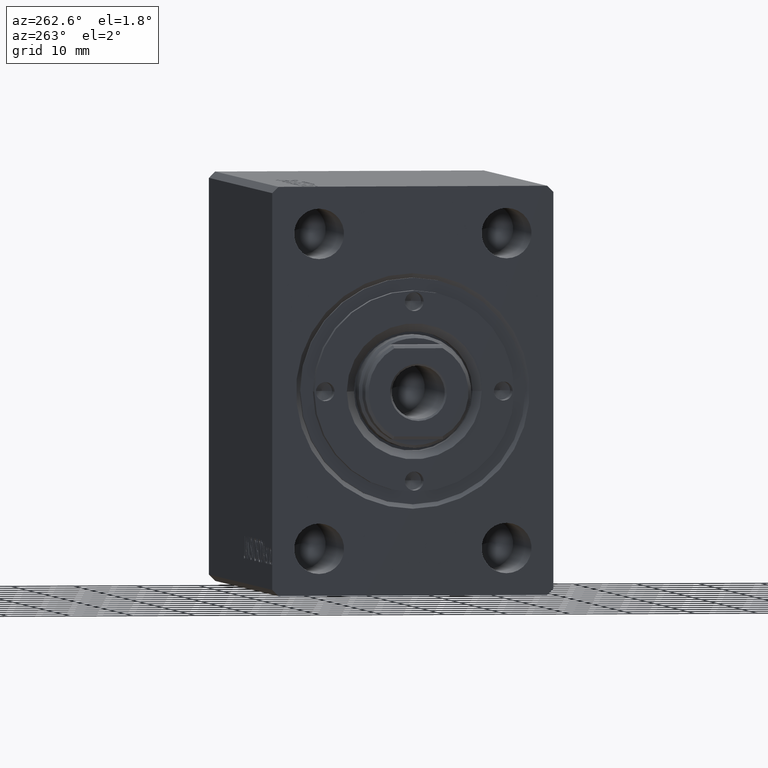
[diagram: clean part render]
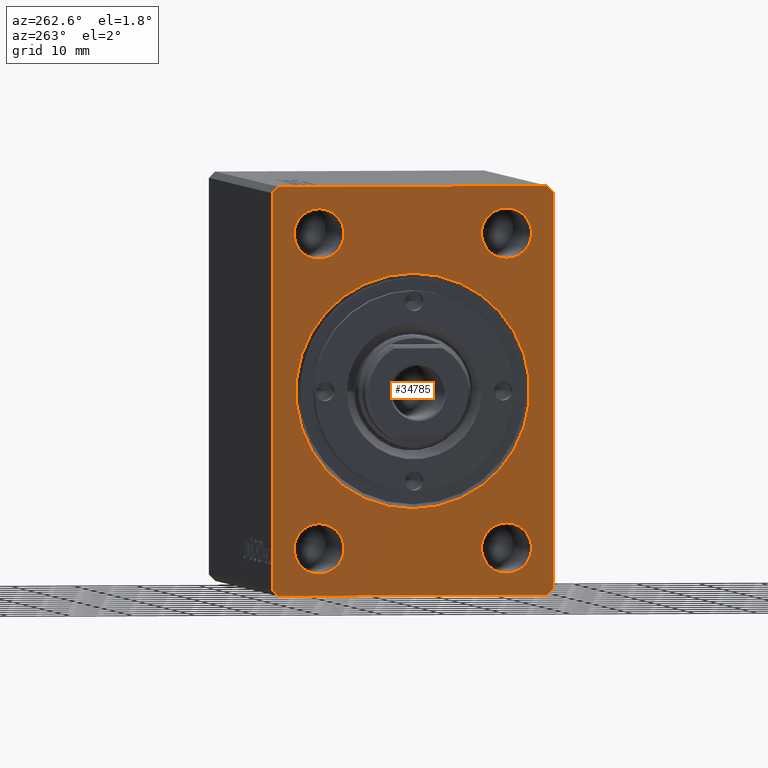
[diagram: same view with one face highlighted and labeled with its STEP entity id]
A machine part, auxiliary view. The second image highlights one B-rep face of the part: STEP entity #34785.
In plain terms, the highlighted planar face has unit normal (1, 0, 0).
Its self-contained STEP definition (entity closure, byte-faithful):
#92 = LINE ( 'NONE', #13500, #36070 ) ;
#530 = DIRECTION ( 'NONE',  ( 0.000000000000000000, -0.7071067811865474617, -0.7071067811865474617 ) ) ;
#1207 = DIRECTION ( 'NONE',  ( 0.000000000000000000, 0.000000000000000000, -1.000000000000000000 ) ) ;
#1606 = CARTESIAN_POINT ( 'NONE',  ( 0.000000000000000000, -21.50000000000001776, -32.50000000000000711 ) ) ;
#1867 = EDGE_CURVE ( 'NONE', #9454, #42395, #24475, .T. ) ;
#2547 = FACE_OUTER_BOUND ( 'NONE', #25325, .T. ) ;
#2665 = CARTESIAN_POINT ( 'NONE',  ( 0.000000000000000000, 21.49999999999999645, -32.50000000000000000 ) ) ;
#2790 = EDGE_CURVE ( 'NONE', #4532, #42989, #12923, .T. ) ;
#2865 = EDGE_CURVE ( 'NONE', #42395, #4532, #20491, .T. ) ;
#2933 = EDGE_CURVE ( 'NONE', #8682, #33231, #30970, .T. ) ;
#3094 = EDGE_CURVE ( 'NONE', #23217, #9454, #25589, .T. ) ;
#3540 = DIRECTION ( 'NONE',  ( 0.000000000000000000, 0.000000000000000000, 1.000000000000000000 ) ) ;
#3721 = VECTOR ( 'NONE', #4171, 1000.000000000000114 ) ;
#3870 = CARTESIAN_POINT ( 'NONE',  ( 0.000000000000000000, 22.49999999999999645, -31.50000000000000000 ) ) ;
#4171 = DIRECTION ( 'NONE',  ( 0.000000000000000000, 0.7071067811865451302, -0.7071067811865500152 ) ) ;
#4183 = CARTESIAN_POINT ( 'NONE',  ( 0.000000000000000000, -22.50000000000001421, -31.50000000000000711 ) ) ;
#4350 = VERTEX_POINT ( 'NONE', #22198 ) ;
#4532 = VERTEX_POINT ( 'NONE', #15456 ) ;
#4676 = CARTESIAN_POINT ( 'NONE',  ( 3.061616997868395467E-16, -14.99999999999999645, 24.99999999999999645 ) ) ;
#4841 = CIRCLE ( 'NONE', #24077, 4.000000000000000000 ) ;
#5374 = CIRCLE ( 'NONE', #30318, 4.000000000000000000 ) ;
#5547 = CARTESIAN_POINT ( 'NONE',  ( 3.061616997868395467E-16, 15.00000000000000355, -24.99999999999999289 ) ) ;
#5668 = CARTESIAN_POINT ( 'NONE',  ( 0.000000000000000000, 0.000000000000000000, 0.000000000000000000 ) ) ;
#5811 = EDGE_CURVE ( 'NONE', #29386, #25935, #28759, .T. ) ;
#6330 = DIRECTION ( 'NONE',  ( 1.000000000000000000, 0.000000000000000000, 0.000000000000000000 ) ) ;
#6672 = AXIS2_PLACEMENT_3D ( 'NONE', #40798, #12929, #3540 ) ;
#6933 = ORIENTED_EDGE ( 'NONE', *, *, #14980, .F. ) ;
#7664 = EDGE_LOOP ( 'NONE', ( #31393, #43999 ) ) ;
#8085 = VERTEX_POINT ( 'NONE', #43728 ) ;
#8228 = CIRCLE ( 'NONE', #31043, 4.000000000000000000 ) ;
#8612 = LINE ( 'NONE', #22229, #23939 ) ;
#8682 = VERTEX_POINT ( 'NONE', #14771 ) ;
#9003 = FACE_BOUND ( 'NONE', #24859, .T. ) ;
#9445 = DIRECTION ( 'NONE',  ( 0.000000000000000000, 0.000000000000000000, -1.000000000000000000 ) ) ;
#9454 = VERTEX_POINT ( 'NONE', #4183 ) ;
#9532 = VECTOR ( 'NONE', #31312, 1000.000000000000000 ) ;
#9688 = EDGE_CURVE ( 'NONE', #22157, #12817, #39548, .T. ) ;
#10418 = CARTESIAN_POINT ( 'NONE',  ( 0.000000000000000000, -22.50000000000001421, -31.50000000000000711 ) ) ;
#10482 = CARTESIAN_POINT ( 'NONE',  ( 0.000000000000000000, 22.49999999999999645, 31.50000000000000000 ) ) ;
#10580 = AXIS2_PLACEMENT_3D ( 'NONE', #42449, #43117, #32623 ) ;
#11120 = EDGE_CURVE ( 'NONE', #4350, #35030, #5374, .T. ) ;
#11121 = VERTEX_POINT ( 'NONE', #10482 ) ;
#11146 = AXIS2_PLACEMENT_3D ( 'NONE', #11685, #31975, #1207 ) ;
#11685 = CARTESIAN_POINT ( 'NONE',  ( 0.000000000000000000, 0.000000000000000000, 0.000000000000000000 ) ) ;
#11757 = AXIS2_PLACEMENT_3D ( 'NONE', #38412, #40727, #44064 ) ;
#11988 = DIRECTION ( 'NONE',  ( -1.000000000000000000, -0.000000000000000000, -0.000000000000000000 ) ) ;
#12229 = EDGE_CURVE ( 'NONE', #35030, #4350, #8228, .T. ) ;
#12394 = AXIS2_PLACEMENT_3D ( 'NONE', #15841, #13376, #39703 ) ;
#12817 = VERTEX_POINT ( 'NONE', #35869 ) ;
#12923 = LINE ( 'NONE', #2665, #19426 ) ;
#12929 = DIRECTION ( 'NONE',  ( -1.000000000000000000, -0.000000000000000000, -0.000000000000000000 ) ) ;
#13207 = ORIENTED_EDGE ( 'NONE', *, *, #12229, .F. ) ;
#13238 = EDGE_CURVE ( 'NONE', #33231, #23217, #92, .T. ) ;
#13250 = FACE_BOUND ( 'NONE', #13331, .T. ) ;
#13279 = EDGE_CURVE ( 'NONE', #25935, #29386, #21841, .T. ) ;
#13331 = EDGE_LOOP ( 'NONE', ( #17563, #21407 ) ) ;
#13376 = DIRECTION ( 'NONE',  ( 1.000000000000000000, 0.000000000000000000, 0.000000000000000000 ) ) ;
#13466 = FACE_BOUND ( 'NONE', #40694, .T. ) ;
#13500 = CARTESIAN_POINT ( 'NONE',  ( 0.000000000000000000, -21.50000000000001421, 32.50000000000000000 ) ) ;
#13704 = ORIENTED_EDGE ( 'NONE', *, *, #11120, .F. ) ;
#14090 = CARTESIAN_POINT ( 'NONE',  ( 3.061616997868395467E-16, 15.00000000000000355, 25.00000000000000000 ) ) ;
#14771 = CARTESIAN_POINT ( 'NONE',  ( 0.000000000000000000, 21.49999999999999645, 32.50000000000000000 ) ) ;
#14857 = CIRCLE ( 'NONE', #10580, 4.000000000000000000 ) ;
#14980 = EDGE_CURVE ( 'NONE', #32399, #8085, #43874, .T. ) ;
#15013 = ORIENTED_EDGE ( 'NONE', *, *, #39903, .F. ) ;
#15456 = CARTESIAN_POINT ( 'NONE',  ( 0.000000000000000000, 21.49999999999999645, -32.50000000000000000 ) ) ;
#15550 = DIRECTION ( 'NONE',  ( 0.000000000000000000, 0.000000000000000000, 1.000000000000000000 ) ) ;
#15841 = CARTESIAN_POINT ( 'NONE',  ( 0.000000000000000000, 0.000000000000000000, 0.000000000000000000 ) ) ;
#16122 = EDGE_CURVE ( 'NONE', #11121, #8682, #8612, .T. ) ;
#16489 = CARTESIAN_POINT ( 'NONE',  ( 0.000000000000000000, -21.50000000000001776, -32.50000000000000711 ) ) ;
#16593 = PLANE ( 'NONE',  #33588 ) ;
#17563 = ORIENTED_EDGE ( 'NONE', *, *, #5811, .T. ) ;
#18358 = LINE ( 'NONE', #39093, #9532 ) ;
#18555 = CIRCLE ( 'NONE', #28544, 4.000000000000000000 ) ;
#19338 = DIRECTION ( 'NONE',  ( 0.000000000000000000, 5.507058653894625853E-17, -1.000000000000000000 ) ) ;
#19426 = VECTOR ( 'NONE', #39469, 1000.000000000000114 ) ;
#19552 = CARTESIAN_POINT ( 'NONE',  ( 3.061616997868395467E-16, 15.00000000000000355, 21.00000000000000000 ) ) ;
#19797 = EDGE_CURVE ( 'NONE', #26774, #38766, #14857, .T. ) ;
#20156 = VECTOR ( 'NONE', #30539, 1000.000000000000000 ) ;
#20491 = LINE ( 'NONE', #16489, #37221 ) ;
#20746 = DIRECTION ( 'NONE',  ( -1.000000000000000000, -0.000000000000000000, -0.000000000000000000 ) ) ;
#20886 = ORIENTED_EDGE ( 'NONE', *, *, #25846, .F. ) ;
#21190 = DIRECTION ( 'NONE',  ( 0.000000000000000000, 0.000000000000000000, 1.000000000000000000 ) ) ;
#21220 = DIRECTION ( 'NONE',  ( -1.000000000000000000, -0.000000000000000000, -0.000000000000000000 ) ) ;
#21407 = ORIENTED_EDGE ( 'NONE', *, *, #13279, .T. ) ;
#21550 = EDGE_LOOP ( 'NONE', ( #20886, #43100 ) ) ;
#21841 = CIRCLE ( 'NONE', #11146, 18.70000000000002061 ) ;
#22157 = VERTEX_POINT ( 'NONE', #19552 ) ;
#22198 = CARTESIAN_POINT ( 'NONE',  ( 3.061616997868395467E-16, -14.99999999999999645, 28.99999999999999645 ) ) ;
#22229 = CARTESIAN_POINT ( 'NONE',  ( 0.000000000000000000, 22.49999999999999645, 31.50000000000000000 ) ) ;
#22506 = AXIS2_PLACEMENT_3D ( 'NONE', #5547, #30087, #43684 ) ;
#22692 = ORIENTED_EDGE ( 'NONE', *, *, #13238, .F. ) ;
#22911 = ORIENTED_EDGE ( 'NONE', *, *, #1867, .F. ) ;
#23068 = FACE_BOUND ( 'NONE', #21550, .T. ) ;
#23076 = CIRCLE ( 'NONE', #6672, 4.000000000000000000 ) ;
#23217 = VERTEX_POINT ( 'NONE', #28477 ) ;
#23522 = ORIENTED_EDGE ( 'NONE', *, *, #43926, .F. ) ;
#23858 = CARTESIAN_POINT ( 'NONE',  ( 0.000000000000000000, 2.290089514405552871E-15, -18.70000000000002061 ) ) ;
#23939 = VECTOR ( 'NONE', #42748, 1000.000000000000114 ) ;
#24077 = AXIS2_PLACEMENT_3D ( 'NONE', #34566, #28102, #28975 ) ;
#24475 = LINE ( 'NONE', #10418, #3721 ) ;
#24859 = EDGE_LOOP ( 'NONE', ( #13704, #13207 ) ) ;
#25325 = EDGE_LOOP ( 'NONE', ( #42954, #23522, #27736, #43878, #22911, #41942, #22692, #28736 ) ) ;
#25589 = LINE ( 'NONE', #36294, #25860 ) ;
#25846 = EDGE_CURVE ( 'NONE', #12817, #22157, #18555, .T. ) ;
#25860 = VECTOR ( 'NONE', #19338, 1000.000000000000000 ) ;
#25935 = VERTEX_POINT ( 'NONE', #23858 ) ;
#26774 = VERTEX_POINT ( 'NONE', #29018 ) ;
#27736 = ORIENTED_EDGE ( 'NONE', *, *, #2790, .F. ) ;
#28102 = DIRECTION ( 'NONE',  ( -1.000000000000000000, -0.000000000000000000, -0.000000000000000000 ) ) ;
#28477 = CARTESIAN_POINT ( 'NONE',  ( 0.000000000000000000, -22.50000000000001776, 31.50000000000000000 ) ) ;
#28544 = AXIS2_PLACEMENT_3D ( 'NONE', #14090, #21220, #31471 ) ;
#28736 = ORIENTED_EDGE ( 'NONE', *, *, #2933, .F. ) ;
#28759 = CIRCLE ( 'NONE', #12394, 18.70000000000002061 ) ;
#28805 = CARTESIAN_POINT ( 'NONE',  ( 3.061616997868395467E-16, -14.99999999999999645, -28.99999999999999645 ) ) ;
#28975 = DIRECTION ( 'NONE',  ( 0.000000000000000000, 0.000000000000000000, 1.000000000000000000 ) ) ;
#29018 = CARTESIAN_POINT ( 'NONE',  ( 3.061616997868395467E-16, -14.99999999999999645, -20.99999999999999645 ) ) ;
#29386 = VERTEX_POINT ( 'NONE', #33625 ) ;
#29783 = CARTESIAN_POINT ( 'NONE',  ( 0.000000000000000000, -21.50000000000001421, 32.50000000000000000 ) ) ;
#30087 = DIRECTION ( 'NONE',  ( -1.000000000000000000, -0.000000000000000000, -0.000000000000000000 ) ) ;
#30318 = AXIS2_PLACEMENT_3D ( 'NONE', #4676, #20746, #21190 ) ;
#30539 = DIRECTION ( 'NONE',  ( 0.000000000000000000, -1.000000000000000000, 0.000000000000000000 ) ) ;
#30970 = LINE ( 'NONE', #40793, #20156 ) ;
#31043 = AXIS2_PLACEMENT_3D ( 'NONE', #36288, #11988, #15550 ) ;
#31312 = DIRECTION ( 'NONE',  ( 0.000000000000000000, 0.000000000000000000, 1.000000000000000000 ) ) ;
#31393 = ORIENTED_EDGE ( 'NONE', *, *, #19797, .F. ) ;
#31471 = DIRECTION ( 'NONE',  ( 0.000000000000000000, 0.000000000000000000, 1.000000000000000000 ) ) ;
#31975 = DIRECTION ( 'NONE',  ( 1.000000000000000000, 0.000000000000000000, 0.000000000000000000 ) ) ;
#32399 = VERTEX_POINT ( 'NONE', #37343 ) ;
#32623 = DIRECTION ( 'NONE',  ( 0.000000000000000000, 0.000000000000000000, 1.000000000000000000 ) ) ;
#33231 = VERTEX_POINT ( 'NONE', #29783 ) ;
#33588 = AXIS2_PLACEMENT_3D ( 'NONE', #5668, #6330, #9445 ) ;
#33625 = CARTESIAN_POINT ( 'NONE',  ( 0.000000000000000000, 0.000000000000000000, 18.70000000000002061 ) ) ;
#34566 = CARTESIAN_POINT ( 'NONE',  ( 3.061616997868395467E-16, 15.00000000000000355, -24.99999999999999289 ) ) ;
#34785 = ADVANCED_FACE ( 'NONE', ( #23068, #44013, #13466, #9003, #13250, #2547 ), #16593, .F. ) ;
#35030 = VERTEX_POINT ( 'NONE', #35734 ) ;
#35734 = CARTESIAN_POINT ( 'NONE',  ( 3.061616997868395467E-16, -14.99999999999999645, 20.99999999999999645 ) ) ;
#35869 = CARTESIAN_POINT ( 'NONE',  ( 3.061616997868395467E-16, 15.00000000000000355, 29.00000000000000000 ) ) ;
#36070 = VECTOR ( 'NONE', #530, 1000.000000000000114 ) ;
#36288 = CARTESIAN_POINT ( 'NONE',  ( 3.061616997868395467E-16, -14.99999999999999645, 24.99999999999999645 ) ) ;
#36294 = CARTESIAN_POINT ( 'NONE',  ( 0.000000000000000000, -22.50000000000001776, 31.50000000000000000 ) ) ;
#37221 = VECTOR ( 'NONE', #40363, 1000.000000000000000 ) ;
#37343 = CARTESIAN_POINT ( 'NONE',  ( 3.061616997868395467E-16, 15.00000000000000355, -28.99999999999999289 ) ) ;
#38412 = CARTESIAN_POINT ( 'NONE',  ( 3.061616997868395467E-16, 15.00000000000000355, 25.00000000000000000 ) ) ;
#38766 = VERTEX_POINT ( 'NONE', #28805 ) ;
#39093 = CARTESIAN_POINT ( 'NONE',  ( 0.000000000000000000, 22.49999999999999645, -31.50000000000000000 ) ) ;
#39469 = DIRECTION ( 'NONE',  ( 0.000000000000000000, 0.7071067811865474617, 0.7071067811865474617 ) ) ;
#39548 = CIRCLE ( 'NONE', #11757, 4.000000000000000000 ) ;
#39703 = DIRECTION ( 'NONE',  ( 0.000000000000000000, 0.000000000000000000, -1.000000000000000000 ) ) ;
#39903 = EDGE_CURVE ( 'NONE', #8085, #32399, #4841, .T. ) ;
#40363 = DIRECTION ( 'NONE',  ( 0.000000000000000000, 1.000000000000000000, 1.613696256722610912E-16 ) ) ;
#40694 = EDGE_LOOP ( 'NONE', ( #15013, #6933 ) ) ;
#40727 = DIRECTION ( 'NONE',  ( -1.000000000000000000, -0.000000000000000000, -0.000000000000000000 ) ) ;
#40793 = CARTESIAN_POINT ( 'NONE',  ( 0.000000000000000000, 21.49999999999999645, 32.50000000000000000 ) ) ;
#40798 = CARTESIAN_POINT ( 'NONE',  ( 3.061616997868395467E-16, -14.99999999999999645, -24.99999999999999645 ) ) ;
#41942 = ORIENTED_EDGE ( 'NONE', *, *, #3094, .F. ) ;
#42395 = VERTEX_POINT ( 'NONE', #1606 ) ;
#42449 = CARTESIAN_POINT ( 'NONE',  ( 3.061616997868395467E-16, -14.99999999999999645, -24.99999999999999645 ) ) ;
#42748 = DIRECTION ( 'NONE',  ( 0.000000000000000000, -0.7071067811865474617, 0.7071067811865474617 ) ) ;
#42954 = ORIENTED_EDGE ( 'NONE', *, *, #16122, .F. ) ;
#42989 = VERTEX_POINT ( 'NONE', #3870 ) ;
#43100 = ORIENTED_EDGE ( 'NONE', *, *, #9688, .F. ) ;
#43117 = DIRECTION ( 'NONE',  ( -1.000000000000000000, -0.000000000000000000, -0.000000000000000000 ) ) ;
#43513 = EDGE_CURVE ( 'NONE', #38766, #26774, #23076, .T. ) ;
#43684 = DIRECTION ( 'NONE',  ( 0.000000000000000000, 0.000000000000000000, 1.000000000000000000 ) ) ;
#43728 = CARTESIAN_POINT ( 'NONE',  ( 3.061616997868395467E-16, 15.00000000000000355, -20.99999999999999289 ) ) ;
#43874 = CIRCLE ( 'NONE', #22506, 4.000000000000000000 ) ;
#43878 = ORIENTED_EDGE ( 'NONE', *, *, #2865, .F. ) ;
#43926 = EDGE_CURVE ( 'NONE', #42989, #11121, #18358, .T. ) ;
#43999 = ORIENTED_EDGE ( 'NONE', *, *, #43513, .F. ) ;
#44013 = FACE_BOUND ( 'NONE', #7664, .T. ) ;
#44064 = DIRECTION ( 'NONE',  ( 0.000000000000000000, 0.000000000000000000, 1.000000000000000000 ) ) ;